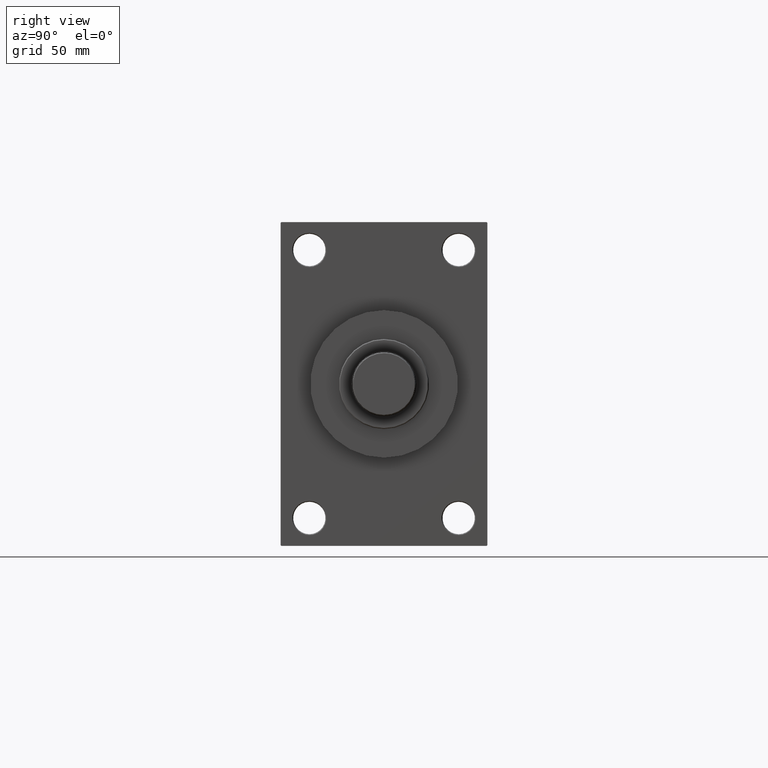
[diagram: clean part render]
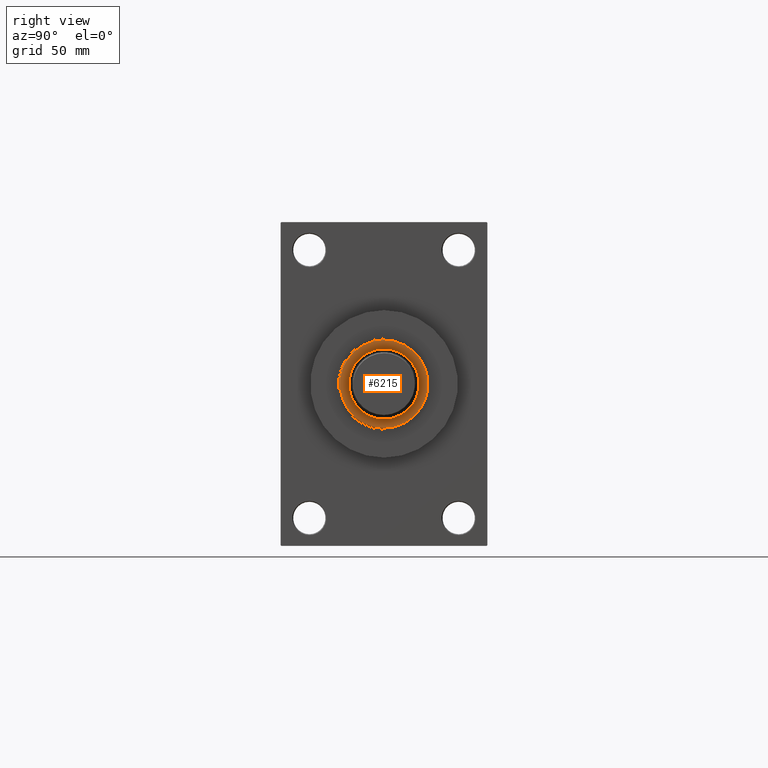
[diagram: same view with one face highlighted and labeled with its STEP entity id]
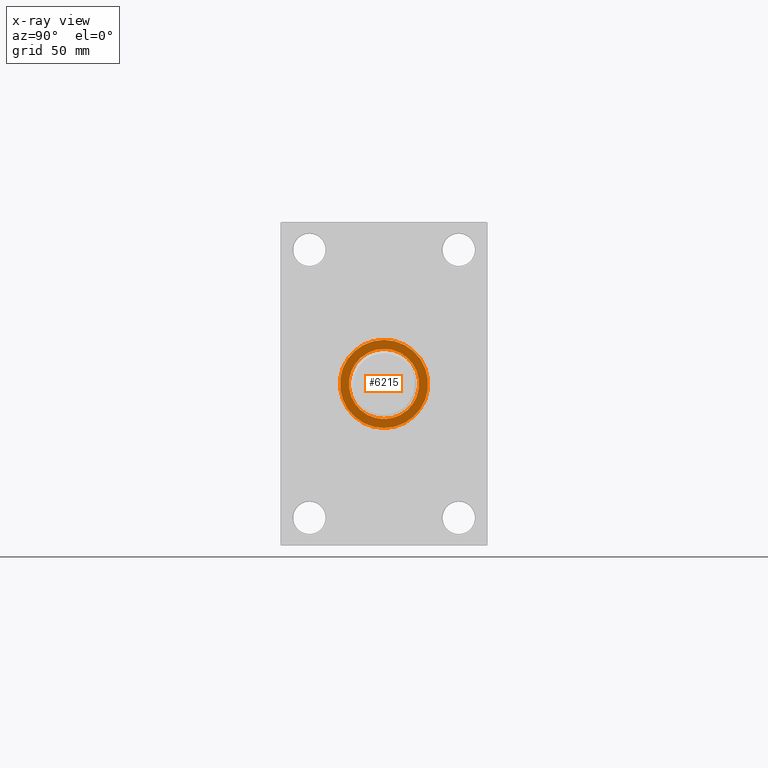
[diagram: x-ray of the same camera — body ghosted, the highlighted face saturated]
A machine part, right view. The second image highlights one B-rep face of the part: STEP entity #6215.
The next image is the same camera in x-ray: the body ghosted, the highlighted face saturated — about 0% of this face is hidden behind the body in this view.
In plain terms, the highlighted planar face has unit normal (1, 0, 0).
Its self-contained STEP definition (entity closure, byte-faithful):
#527 = CARTESIAN_POINT ( 'NONE',  ( -24.49999999999998224, 0.000000000000000000, 52.25999999999999801 ) ) ;
#794 = CIRCLE ( 'NONE', #23341, 24.49999999999998224 ) ;
#2166 = DIRECTION ( 'NONE',  ( 1.000000000000000000, 0.000000000000000000, 0.000000000000000000 ) ) ;
#3002 = VERTEX_POINT ( 'NONE', #33580 ) ;
#3307 = PLANE ( 'NONE',  #39084 ) ;
#5132 = VERTEX_POINT ( 'NONE', #17844 ) ;
#5230 = DIRECTION ( 'NONE',  ( 0.000000000000000000, 0.000000000000000000, 1.000000000000000000 ) ) ;
#6215 = ADVANCED_FACE ( 'NONE', ( #32761, #47606 ), #3307, .T. ) ;
#9886 = EDGE_CURVE ( 'NONE', #3002, #21289, #35859, .T. ) ;
#11340 = EDGE_CURVE ( 'NONE', #5132, #23814, #794, .T. ) ;
#15666 = EDGE_CURVE ( 'NONE', #21289, #3002, #21149, .T. ) ;
#15906 = ORIENTED_EDGE ( 'NONE', *, *, #35433, .T. ) ;
#17844 = CARTESIAN_POINT ( 'NONE',  ( 24.49999999999998224, 3.031000827889698072E-15, 52.25999999999999801 ) ) ;
#18155 = CARTESIAN_POINT ( 'NONE',  ( 0.000000000000000000, 0.000000000000000000, 52.25999999999999801 ) ) ;
#20082 = DIRECTION ( 'NONE',  ( 1.000000000000000000, 0.000000000000000000, 0.000000000000000000 ) ) ;
#21149 = CIRCLE ( 'NONE', #24251, 19.50000000000000000 ) ;
#21289 = VERTEX_POINT ( 'NONE', #39729 ) ;
#23341 = AXIS2_PLACEMENT_3D ( 'NONE', #32145, #29226, #24600 ) ;
#23814 = VERTEX_POINT ( 'NONE', #527 ) ;
#24251 = AXIS2_PLACEMENT_3D ( 'NONE', #38581, #5230, #20082 ) ;
#24600 = DIRECTION ( 'NONE',  ( 1.000000000000000000, 0.000000000000000000, 0.000000000000000000 ) ) ;
#26103 = ORIENTED_EDGE ( 'NONE', *, *, #9886, .F. ) ;
#27820 = ORIENTED_EDGE ( 'NONE', *, *, #15666, .F. ) ;
#28360 = CARTESIAN_POINT ( 'NONE',  ( 0.000000000000000000, 0.000000000000000000, 52.25999999999999801 ) ) ;
#28660 = AXIS2_PLACEMENT_3D ( 'NONE', #43040, #28952, #2166 ) ;
#28858 = AXIS2_PLACEMENT_3D ( 'NONE', #28360, #39520, #35889 ) ;
#28952 = DIRECTION ( 'NONE',  ( 0.000000000000000000, 0.000000000000000000, 1.000000000000000000 ) ) ;
#29131 = DIRECTION ( 'NONE',  ( 0.000000000000000000, 0.000000000000000000, 1.000000000000000000 ) ) ;
#29226 = DIRECTION ( 'NONE',  ( 0.000000000000000000, 0.000000000000000000, 1.000000000000000000 ) ) ;
#32145 = CARTESIAN_POINT ( 'NONE',  ( 0.000000000000000000, 0.000000000000000000, 52.25999999999999801 ) ) ;
#32761 = FACE_BOUND ( 'NONE', #34604, .T. ) ;
#32931 = EDGE_LOOP ( 'NONE', ( #15906, #38047 ) ) ;
#33580 = CARTESIAN_POINT ( 'NONE',  ( 19.50000000000000000, 0.000000000000000000, 52.25999999999999801 ) ) ;
#34604 = EDGE_LOOP ( 'NONE', ( #26103, #27820 ) ) ;
#35433 = EDGE_CURVE ( 'NONE', #23814, #5132, #45723, .T. ) ;
#35859 = CIRCLE ( 'NONE', #28858, 19.50000000000000000 ) ;
#35889 = DIRECTION ( 'NONE',  ( 1.000000000000000000, 0.000000000000000000, 0.000000000000000000 ) ) ;
#38047 = ORIENTED_EDGE ( 'NONE', *, *, #11340, .T. ) ;
#38581 = CARTESIAN_POINT ( 'NONE',  ( 0.000000000000000000, 0.000000000000000000, 52.25999999999999801 ) ) ;
#39084 = AXIS2_PLACEMENT_3D ( 'NONE', #18155, #29131, #44180 ) ;
#39520 = DIRECTION ( 'NONE',  ( 0.000000000000000000, 0.000000000000000000, 1.000000000000000000 ) ) ;
#39729 = CARTESIAN_POINT ( 'NONE',  ( -19.50000000000000000, 2.388061258337338939E-15, 52.25999999999999801 ) ) ;
#43040 = CARTESIAN_POINT ( 'NONE',  ( 0.000000000000000000, 0.000000000000000000, 52.25999999999999801 ) ) ;
#44180 = DIRECTION ( 'NONE',  ( 1.000000000000000000, 0.000000000000000000, -0.000000000000000000 ) ) ;
#45723 = CIRCLE ( 'NONE', #28660, 24.49999999999998224 ) ;
#47606 = FACE_OUTER_BOUND ( 'NONE', #32931, .T. ) ;